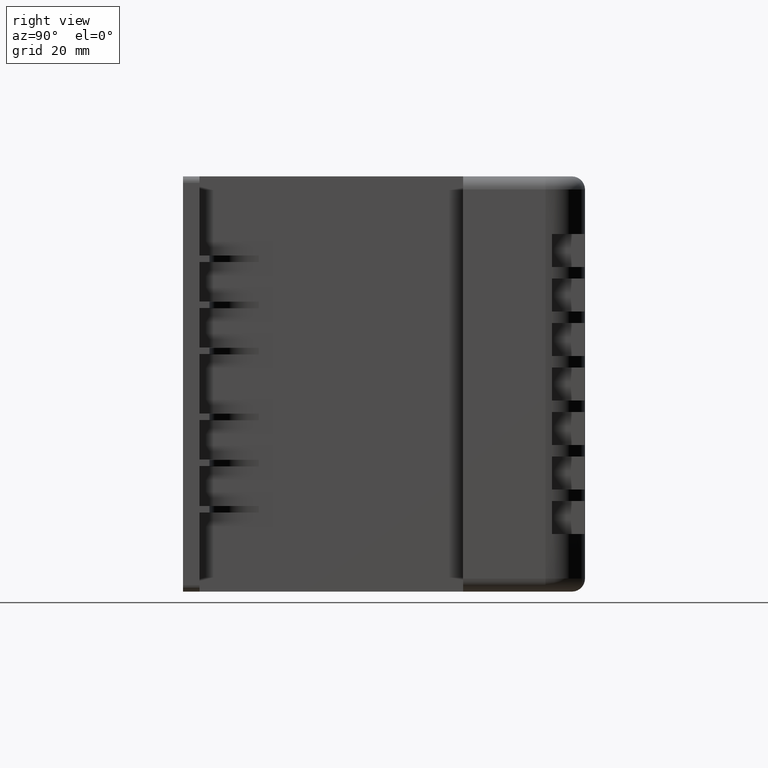
[diagram: clean part render]
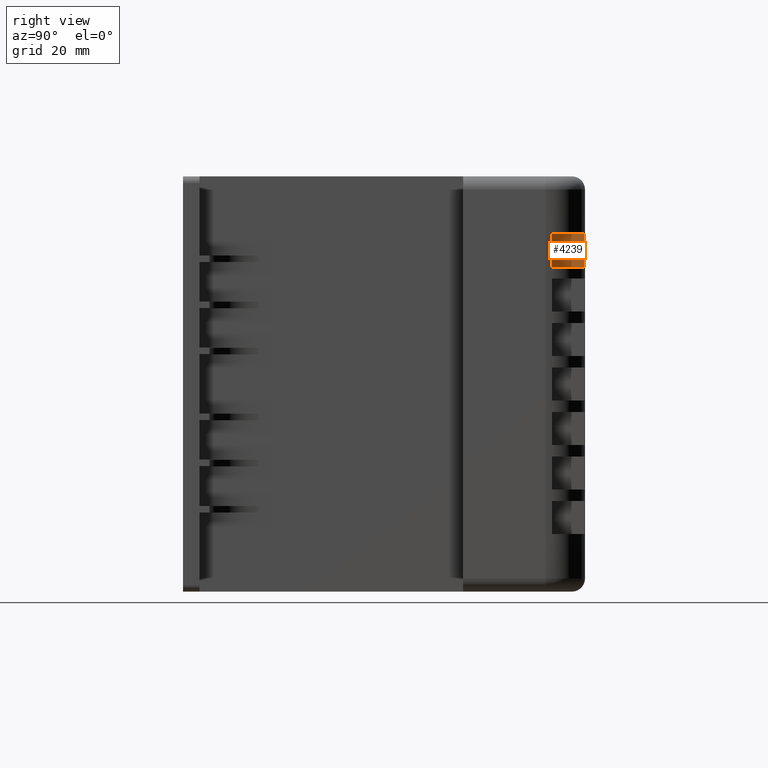
[diagram: same view with one face highlighted and labeled with its STEP entity id]
A machine part, right view. The second image highlights one B-rep face of the part: STEP entity #4239.
In plain terms, the highlighted planar face has unit normal (-1, 0, -0).
Its self-contained STEP definition (entity closure, byte-faithful):
#526=FACE_OUTER_BOUND('',#818,.T.);
#818=EDGE_LOOP('',(#3530,#3531,#3532,#3533));
#1176=LINE('',#6945,#1568);
#1196=LINE('',#6998,#1588);
#1198=LINE('',#7001,#1590);
#1214=LINE('',#7036,#1606);
#1568=VECTOR('',#5799,10.);
#1588=VECTOR('',#5845,10.);
#1590=VECTOR('',#5849,10.);
#1606=VECTOR('',#5891,10.);
#1932=VERTEX_POINT('',#6938);
#1935=VERTEX_POINT('',#6943);
#1954=VERTEX_POINT('',#6995);
#1955=VERTEX_POINT('',#6997);
#2446=EDGE_CURVE('',#1935,#1932,#1176,.T.);
#2472=EDGE_CURVE('',#1955,#1954,#1196,.T.);
#2474=EDGE_CURVE('',#1932,#1954,#1198,.T.);
#2490=EDGE_CURVE('',#1935,#1955,#1214,.T.);
#3530=ORIENTED_EDGE('',*,*,#2446,.F.);
#3531=ORIENTED_EDGE('',*,*,#2490,.T.);
#3532=ORIENTED_EDGE('',*,*,#2472,.T.);
#3533=ORIENTED_EDGE('',*,*,#2474,.F.);
#3736=PLANE('',#4730);
#4239=ADVANCED_FACE('',(#526),#3736,.F.);
#4730=AXIS2_PLACEMENT_3D('',#7035,#5889,#5890);
#5799=DIRECTION('',(-3.41426618094879E-16,0.,-1.));
#5845=DIRECTION('',(1.11022302462516E-16,0.,-1.));
#5849=DIRECTION('',(0.,-1.,0.));
#5889=DIRECTION('center_axis',(-1.,0.,-1.11022302462516E-16));
#5890=DIRECTION('ref_axis',(1.11022302462516E-16,0.,-1.));
#5891=DIRECTION('',(0.,-1.,0.));
#6938=CARTESIAN_POINT('',(-9.99999999999998,36.8321595661992,98.5));
#6943=CARTESIAN_POINT('',(-9.99999999999998,36.8321595661992,108.5));
#6945=CARTESIAN_POINT('',(-9.99999999999998,36.8321595661992,94.5));
#6995=CARTESIAN_POINT('',(-9.99999999999998,27.,98.5));
#6997=CARTESIAN_POINT('',(-9.99999999999998,27.,108.5));
#6998=CARTESIAN_POINT('',(-9.99999999999998,27.,98.5));
#7001=CARTESIAN_POINT('',(-9.99999999999998,37.,98.5));
#7035=CARTESIAN_POINT('Origin',(-9.99999999999998,37.,108.5));
#7036=CARTESIAN_POINT('',(-9.99999999999998,37.,108.5));